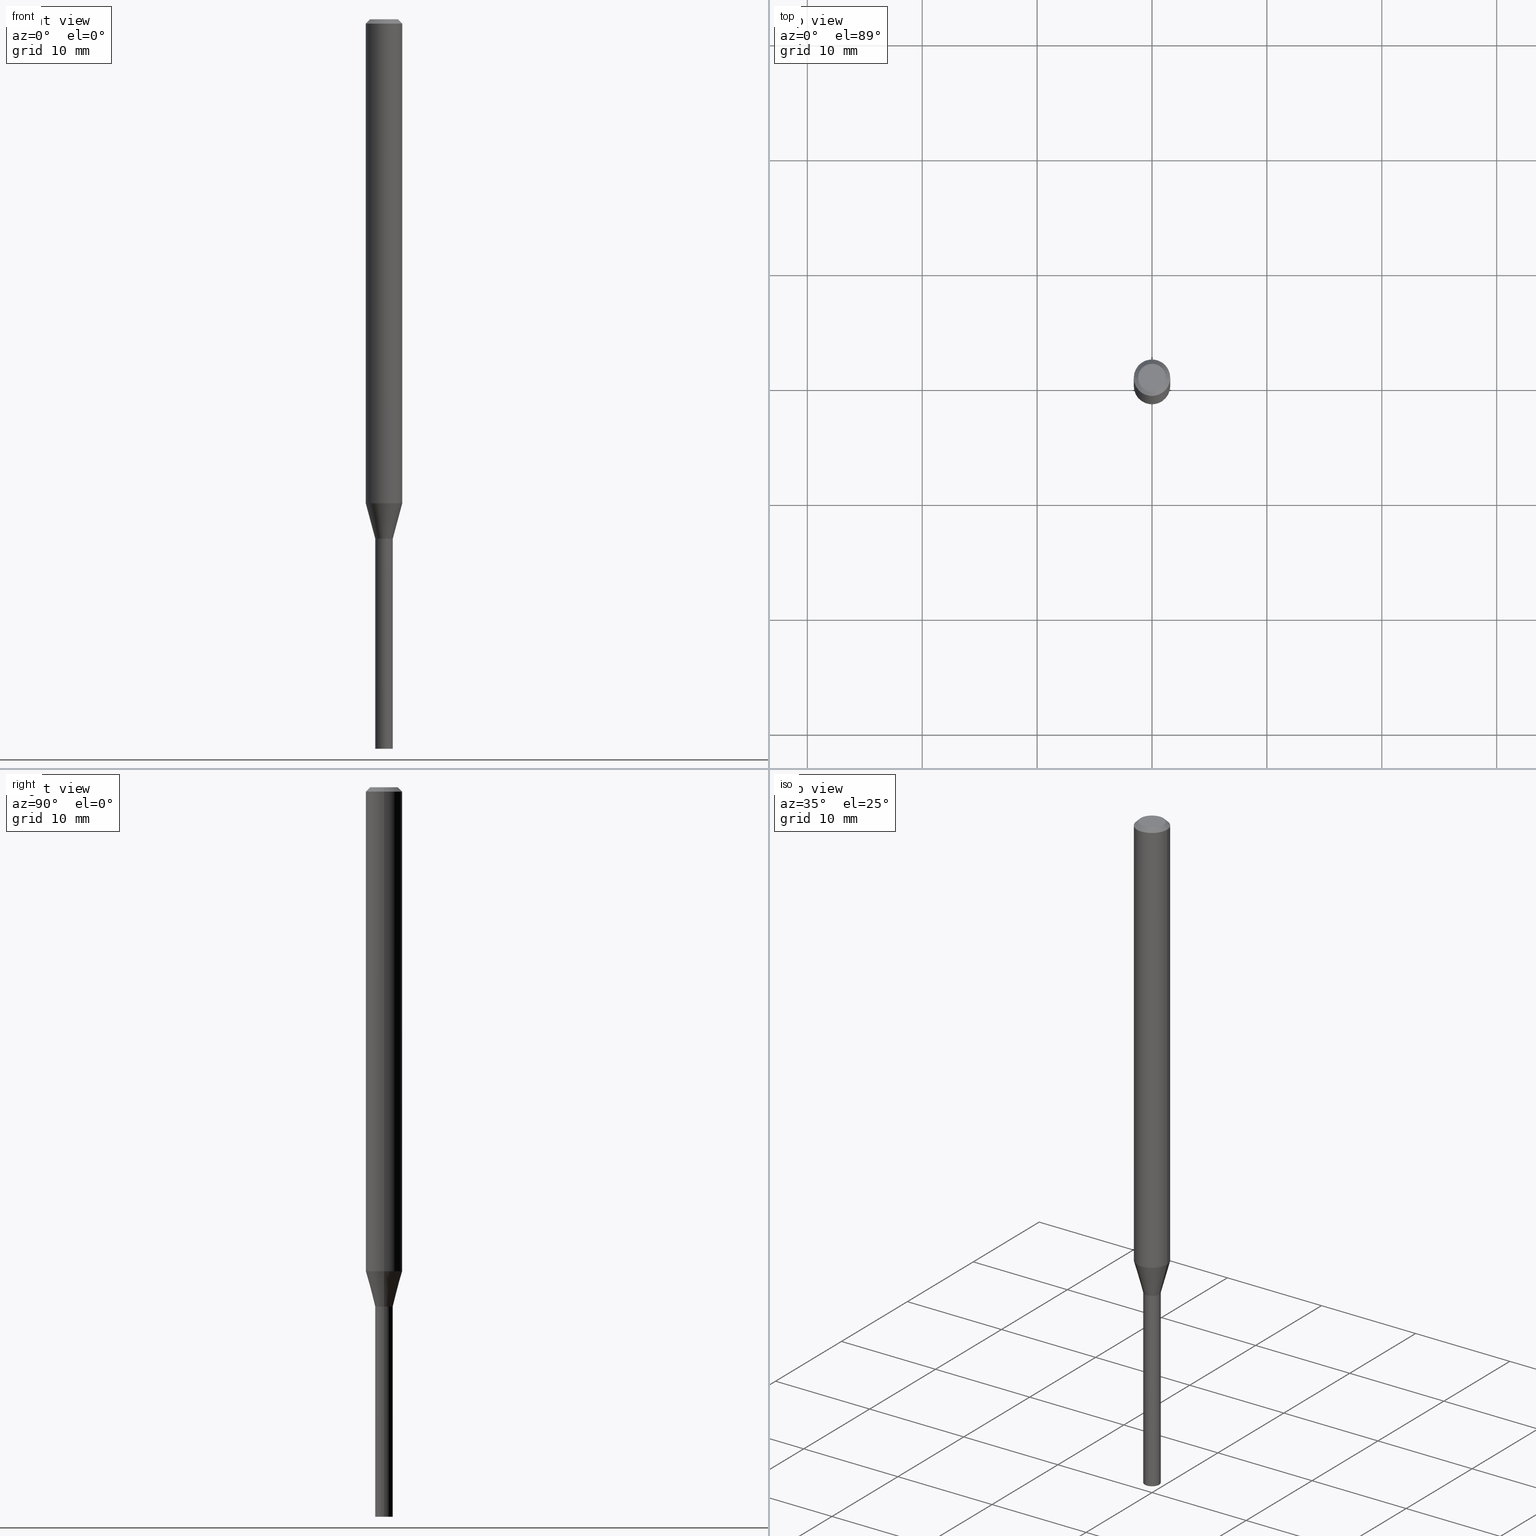
[diagram: canonical four-view strip — front | top / right | iso, engineering-drawing reading convention]
A machine part, canonical four-view strip (front | top / right | iso — engineering-drawing reading convention). The complete STEP part file that produces these views, byte-faithful:
ISO-10303-21;
HEADER;
FILE_DESCRIPTION (( 'STEP AP203' ),
    '1' );
FILE_NAME ('01295.STEP',
    '2024-03-20T01:09:22',
    ( '' ),
    ( '' ),
    'SwSTEP 2.0',
    'SolidWorks 2023',
    '' );
FILE_SCHEMA (( 'CONFIG_CONTROL_DESIGN' ));
ENDSEC;

DATA;
#1 = PLANE ( 'NONE',  #259 ) ;
#2 = EDGE_CURVE ( 'NONE', #214, #28, #339, .T. ) ;
#3 = DIRECTION ( 'NONE',  ( 1.000000000000000000, -6.982962677686236734E-15, 0.000000000000000000 ) ) ;
#4 = COORDINATED_UNIVERSAL_TIME_OFFSET ( 5, 0, .BEHIND. ) ;
#5 = CIRCLE ( 'NONE', #56, 0.02999999999999999889 ) ;
#6 = DIRECTION ( 'NONE',  ( -2.445468806185136597E-29, 3.491481338843145583E-15, 1.000000000000000000 ) ) ;
#7 = COORDINATED_UNIVERSAL_TIME_OFFSET ( 5, 0, .BEHIND. ) ;
#8 = CYLINDRICAL_SURFACE ( 'NONE', #297, 0.02999999999999999889 ) ;
#9 = PERSON_AND_ORGANIZATION_ROLE ( 'classification_officer' ) ;
#10 = ADVANCED_FACE ( 'NONE', ( #121 ), #438, .F. ) ;
#11 = CARTESIAN_POINT ( 'NONE',  ( 2.094888803306315070E-16, 0.02999999999999378511, -1.780000000000000027 ) ) ;
#12 = ORIENTED_EDGE ( 'NONE', *, *, #340, .F. ) ;
#13 = LINE ( 'NONE', #372, #447 ) ;
#14 = VECTOR ( 'NONE', #125, 39.37007874015748143 ) ;
#15 = AXIS2_PLACEMENT_3D ( 'NONE', #385, #72, #213 ) ;
#16 = PRODUCT ( '01295', '01295', '', ( #148 ) ) ;
#17 = FACE_OUTER_BOUND ( 'NONE', #422, .T. ) ;
#18 = EDGE_CURVE ( 'NONE', #71, #222, #104, .T. ) ;
#19 = FACE_OUTER_BOUND ( 'NONE', #417, .T. ) ;
#20 = DATE_AND_TIME ( #337, #406 ) ;
#21 = CARTESIAN_POINT ( 'NONE',  ( -0.02999999999999999889, -7.258607244396301641E-15, -2.500000000000000000 ) ) ;
#22 = LOCAL_TIME ( 21, 9, 22.00000000000000000, #7 ) ;
#23 = CARTESIAN_POINT ( 'NONE',  ( 0.02949999999999999845, -6.420834182132543350E-15, -1.780000000000000027 ) ) ;
#24 = CARTESIAN_POINT ( 'NONE',  ( 4.056319525436792894E-29, -5.791349246257960062E-15, -1.658708348754011741 ) ) ;
#25 = ADVANCED_FACE ( 'NONE', ( #296 ), #1, .F. ) ;
#26 = EDGE_LOOP ( 'NONE', ( #207, #464 ) ) ;
#27 = DIRECTION ( 'NONE',  ( 0.7071067811865511255, -7.319954787623268667E-15, -0.7071067811865439090 ) ) ;
#28 = VERTEX_POINT ( 'NONE', #257 ) ;
#29 = ADVANCED_FACE ( 'NONE', ( #328 ), #333, .T. ) ;
#30 = LOCAL_TIME ( 21, 9, 22.00000000000000000, #4 ) ;
#31 = FACE_OUTER_BOUND ( 'NONE', #419, .T. ) ;
#32 = VERTEX_POINT ( 'NONE', #286 ) ;
#33 = EDGE_CURVE ( 'NONE', #73, #288, #293, .T. ) ;
#34 = DIRECTION ( 'NONE',  ( 1.000000000000000000, -6.982962677686250933E-15, 0.000000000000000000 ) ) ;
#35 = ORIENTED_EDGE ( 'NONE', *, *, #212, .F. ) ;
#36 = DIRECTION ( 'NONE',  ( 1.000000000000000000, -6.982962677686265922E-15, 4.876176775795935793E-29 ) ) ;
#37 = ORIENTED_EDGE ( 'NONE', *, *, #322, .F. ) ;
#38 = DATE_TIME_ROLE ( 'classification_date' ) ;
#39 = AXIS2_PLACEMENT_3D ( 'NONE', #235, #344, #170 ) ;
#40 = EDGE_CURVE ( 'NONE', #222, #71, #365, .T. ) ;
#41 = DIRECTION ( 'NONE',  ( 1.000000000000000000, -6.982962677686253300E-15, 0.000000000000000000 ) ) ;
#42 = CARTESIAN_POINT ( 'NONE',  ( 4.352934475009543120E-29, -6.214836783140799618E-15, -1.780000000000000027 ) ) ;
#43 =( NAMED_UNIT ( * ) SI_UNIT ( $, .STERADIAN. ) SOLID_ANGLE_UNIT ( ) );
#44 = ORIENTED_EDGE ( 'NONE', *, *, #411, .F. ) ;
#45 = APPROVAL_ROLE ( '' ) ;
#46 = VECTOR ( 'NONE', #91, 39.37007874015748143 ) ;
#47 = DIRECTION ( 'NONE',  ( -2.445468806185136597E-29, 3.491481338843145583E-15, 1.000000000000000000 ) ) ;
#48 = ADVANCED_FACE ( 'NONE', ( #253 ), #431, .T. ) ;
#49 = APPROVAL_DATE_TIME ( #188, #356 ) ;
#50 = ORIENTED_EDGE ( 'NONE', *, *, #196, .F. ) ;
#51 = DIRECTION ( 'NONE',  ( -2.438088387897960049E-29, 3.491481338843145188E-15, 1.000000000000000000 ) ) ;
#52 = ADVANCED_FACE ( 'NONE', ( #117 ), #8, .T. ) ;
#53 = EDGE_CURVE ( 'NONE', #189, #424, #308, .T. ) ;
#54 = ORIENTED_EDGE ( 'NONE', *, *, #411, .T. ) ;
#55 = CARTESIAN_POINT ( 'NONE',  ( 4.351711740606451439E-29, -6.213091042471378115E-15, -1.779500000000000304 ) ) ;
#56 = AXIS2_PLACEMENT_3D ( 'NONE', #312, #172, #240 ) ;
#57 = ORGANIZATION ( 'UNSPECIFIED', 'UNSPECIFIED', '' ) ;
#58 = FACE_OUTER_BOUND ( 'NONE', #26, .T. ) ;
#59 = APPROVAL_DATE_TIME ( #20, #175 ) ;
#60 = DIRECTION ( 'NONE',  ( 2.445468806185136597E-29, -3.491481338843145583E-15, -1.000000000000000000 ) ) ;
#61 = DIRECTION ( 'NONE',  ( -2.445468806185136877E-29, 3.491481338843145188E-15, 1.000000000000000000 ) ) ;
#62 = VECTOR ( 'NONE', #440, 39.37007874015748143 ) ;
#63 = DIRECTION ( 'NONE',  ( 0.2588190451025215721, 1.565188264969619995E-15, 0.9659258262890679791 ) ) ;
#64 = DIRECTION ( 'NONE',  ( 0.7071067811865656694, -2.468850131082446387E-15, 0.7071067811865294761 ) ) ;
#65 = ORIENTED_EDGE ( 'NONE', *, *, #262, .F. ) ;
#66 = CARTESIAN_POINT ( 'NONE',  ( 4.352934475009543120E-29, -6.214836783140799618E-15, -1.780000000000000027 ) ) ;
#67 = ORIENTED_EDGE ( 'NONE', *, *, #401, .F. ) ;
#68 = CC_DESIGN_PERSON_AND_ORGANIZATION_ASSIGNMENT ( #85, #74, ( #186 ) ) ;
#69 = AXIS2_PLACEMENT_3D ( 'NONE', #359, #6, #180 ) ;
#70 = DIRECTION ( 'NONE',  ( -0.2588190451025215721, 5.211531920934551831E-15, 0.9659258262890679791 ) ) ;
#71 = VERTEX_POINT ( 'NONE', #260 ) ;
#72 = DIRECTION ( 'NONE',  ( -2.445468806185136597E-29, 3.491481338843145583E-15, 1.000000000000000000 ) ) ;
#73 = VERTEX_POINT ( 'NONE', #402 ) ;
#74 = PERSON_AND_ORGANIZATION_ROLE ( 'creator' ) ;
#75 = ORIENTED_EDGE ( 'NONE', *, *, #401, .T. ) ;
#76 = CLOSED_SHELL ( 'NONE', ( #10, #377, #84, #408, #29, #247, #48, #332, #311, #299, #387, #181 ) ) ;
#77 = AXIS2_PLACEMENT_3D ( 'NONE', #455, #320, #146 ) ;
#78 = CARTESIAN_POINT ( 'NONE',  ( 6.113672015462842613E-29, -8.728703347107864943E-15, -2.500000000000000000 ) ) ;
#79 = ADVANCED_BREP_SHAPE_REPRESENTATION ( '01295', ( #433, #427, #319 ), #349 ) ;
#80 = PERSON_AND_ORGANIZATION ( #346, #57 ) ;
#81 = CARTESIAN_POINT ( 'NONE',  ( 0.000000000000000000, 0.000000000000000000, 0.000000000000000000 ) ) ;
#82 = PERSON_AND_ORGANIZATION ( #346, #57 ) ;
#83 = DIRECTION ( 'NONE',  ( -2.445468806185136597E-29, 3.491481338843145583E-15, 1.000000000000000000 ) ) ;
#84 = ADVANCED_FACE ( 'NONE', ( #357 ), #289, .T. ) ;
#85 = PERSON_AND_ORGANIZATION ( #346, #57 ) ;
#86 = AXIS2_PLACEMENT_3D ( 'NONE', #298, #51, #195 ) ;
#87 = DIRECTION ( 'NONE',  ( 2.438088387897960049E-29, -3.491481338843145188E-15, -1.000000000000000000 ) ) ;
#88 = DIRECTION ( 'NONE',  ( 1.000000000000000000, -6.982962677686253300E-15, 0.000000000000000000 ) ) ;
#89 = EDGE_CURVE ( 'NONE', #310, #386, #156, .T. ) ;
#90 = LINE ( 'NONE', #301, #14 ) ;
#91 = DIRECTION ( 'NONE',  ( -2.445468806185136877E-29, 3.491481338843145188E-15, 1.000000000000000000 ) ) ;
#92 = VECTOR ( 'NONE', #160, 39.37007874015748143 ) ;
#93 = CARTESIAN_POINT ( 'NONE',  ( -0.06250000000000000000, 4.440892098500626162E-16, -3.074334431409316114E-30 ) ) ;
#94 = LINE ( 'NONE', #93, #92 ) ;
#95 = DIRECTION ( 'NONE',  ( 2.445468806185136597E-29, -3.491481338843145583E-15, -1.000000000000000000 ) ) ;
#96 = AXIS2_PLACEMENT_3D ( 'NONE', #42, #323, #41 ) ;
#97 = FACE_OUTER_BOUND ( 'NONE', #244, .T. ) ;
#98 = ORIENTED_EDGE ( 'NONE', *, *, #362, .F. ) ;
#99 = CARTESIAN_POINT ( 'NONE',  ( -0.02999999999999999889, 2.131628207280300479E-16, -1.475680527076471707E-30 ) ) ;
#100 = EDGE_CURVE ( 'NONE', #73, #165, #318, .T. ) ;
#101 = ORIENTED_EDGE ( 'NONE', *, *, #196, .T. ) ;
#102 = LINE ( 'NONE', #99, #127 ) ;
#103 = VERTEX_POINT ( 'NONE', #443 ) ;
#104 = CIRCLE ( 'NONE', #69, 0.06250000000000000000 ) ;
#105 = DIRECTION ( 'NONE',  ( -2.445468806185136877E-29, 3.491481338843145188E-15, 1.000000000000000000 ) ) ;
#106 = ORIENTED_EDGE ( 'NONE', *, *, #116, .F. ) ;
#107 = CALENDAR_DATE ( 2024, 19, 3 ) ;
#108 = EDGE_LOOP ( 'NONE', ( #37, #173, #364, #456 ) ) ;
#109 = CC_DESIGN_PERSON_AND_ORGANIZATION_ASSIGNMENT ( #82, #223, ( #186 ) ) ;
#110 = DIRECTION ( 'NONE',  ( 0.000000000000000000, 0.000000000000000000, 1.000000000000000000 ) ) ;
#111 = CARTESIAN_POINT ( 'NONE',  ( -0.02949999999999999845, -6.005226676091569483E-15, -1.780000000000000027 ) ) ;
#112 = CONICAL_SURFACE ( 'NONE', #453, 0.02999999999999992603, 0.2617993877991502960 ) ;
#113 = AXIS2_PLACEMENT_3D ( 'NONE', #459, #414, #420 ) ;
#114 = EDGE_LOOP ( 'NONE', ( #354, #239, #203, #384 ) ) ;
#115 = DATE_AND_TIME ( #291, #30 ) ;
#116 = EDGE_CURVE ( 'NONE', #32, #288, #412, .T. ) ;
#117 = FACE_OUTER_BOUND ( 'NONE', #226, .T. ) ;
#118 = ORIENTED_EDGE ( 'NONE', *, *, #249, .T. ) ;
#119 = DESIGN_CONTEXT ( 'detailed design', #393, 'design' ) ;
#120 = CIRCLE ( 'NONE', #208, 0.02999999999999992256 ) ;
#121 = FACE_OUTER_BOUND ( 'NONE', #224, .T. ) ;
#122 = DIRECTION ( 'NONE',  ( 1.000000000000000000, -6.982962677686253300E-15, 0.000000000000000000 ) ) ;
#123 = DIRECTION ( 'NONE',  ( -2.445468806185136597E-29, 3.491481338843145583E-15, 1.000000000000000000 ) ) ;
#124 = EDGE_LOOP ( 'NONE', ( #44, #390, #306, #176 ) ) ;
#125 = DIRECTION ( 'NONE',  ( -2.445468806185136877E-29, 3.491481338843145188E-15, 1.000000000000000000 ) ) ;
#126 = CLOSED_SHELL ( 'NONE', ( #52, #258, #202, #25 ) ) ;
#127 = VECTOR ( 'NONE', #105, 39.37007874015748143 ) ;
#128 = APPROVAL_PERSON_ORGANIZATION ( #329, #151, #324 ) ;
#129 = PLANE ( 'NONE',  #86 ) ;
#130 = CARTESIAN_POINT ( 'NONE',  ( 4.351711740606451439E-29, -6.213091042471378115E-15, -1.779500000000000304 ) ) ;
#131 = DIRECTION ( 'NONE',  ( -2.445468806185136597E-29, 3.491481338843145583E-15, 1.000000000000000000 ) ) ;
#132 = ORIENTED_EDGE ( 'NONE', *, *, #227, .F. ) ;
#133 = AXIS2_PLACEMENT_3D ( 'NONE', #330, #147, #220 ) ;
#134 = CC_DESIGN_APPROVAL ( #356, ( #460 ) ) ;
#135 = CARTESIAN_POINT ( 'NONE',  ( 0.02999999999999999889, -6.424325663471387146E-15, -1.780000000000000027 ) ) ;
#136 = ORIENTED_EDGE ( 'NONE', *, *, #340, .T. ) ;
#137 = PLANE ( 'NONE',  #141 ) ;
#138 = ORIENTED_EDGE ( 'NONE', *, *, #441, .F. ) ;
#139 = CARTESIAN_POINT ( 'NONE',  ( 0.02949999999999999845, -6.420834182132543350E-15, -1.780000000000000027 ) ) ;
#140 = ORIENTED_EDGE ( 'NONE', *, *, #465, .F. ) ;
#141 = AXIS2_PLACEMENT_3D ( 'NONE', #167, #164, #36 ) ;
#142 = CIRCLE ( 'NONE', #15, 0.04749999999999999362 ) ;
#143 = DIRECTION ( 'NONE',  ( -1.000000000000000000, 6.982962677686265922E-15, -4.876176775795935793E-29 ) ) ;
#144 = ORIENTED_EDGE ( 'NONE', *, *, #53, .F. ) ;
#145 = CC_DESIGN_PERSON_AND_ORGANIZATION_ASSIGNMENT ( #256, #426, ( #16 ) ) ;
#146 = DIRECTION ( 'NONE',  ( 1.000000000000000000, -6.982962677686253300E-15, 0.000000000000000000 ) ) ;
#147 = DIRECTION ( 'NONE',  ( -2.445468806185136597E-29, 3.491481338843145583E-15, 1.000000000000000000 ) ) ;
#148 = MECHANICAL_CONTEXT ( 'NONE', #190, 'mechanical' ) ;
#149 = ORIENTED_EDGE ( 'NONE', *, *, #266, .T. ) ;
#150 = CIRCLE ( 'NONE', #199, 0.02999999999999999889 ) ;
#151 = APPROVAL ( #360, 'UNSPECIFIED' ) ;
#152 = CONICAL_SURFACE ( 'NONE', #358, 0.02949999999999999845, 0.7853981633974739252 ) ;
#153 = DIRECTION ( 'NONE',  ( -1.000000000000000000, 6.982962677686265922E-15, -4.876176775795935793E-29 ) ) ;
#154 = ORIENTED_EDGE ( 'NONE', *, *, #262, .T. ) ;
#155 = DIRECTION ( 'NONE',  ( 1.000000000000000000, -6.982962677686266711E-15, 4.876176775795935793E-29 ) ) ;
#156 = CIRCLE ( 'NONE', #399, 0.02999999999999999889 ) ;
#157 = DIRECTION ( 'NONE',  ( -0.7071067811865511255, 2.468850131082294531E-15, -0.7071067811865439090 ) ) ;
#158 = CIRCLE ( 'NONE', #413, 0.06250000000000000000 ) ;
#159 = CARTESIAN_POINT ( 'NONE',  ( 4.352934475009543120E-29, -6.214836783140799618E-15, -1.780000000000000027 ) ) ;
#160 = DIRECTION ( 'NONE',  ( -2.445468806185136877E-29, 3.491481338843145188E-15, 1.000000000000000000 ) ) ;
#161 = CARTESIAN_POINT ( 'NONE',  ( -0.06250000000000000000, 3.840629472727444916E-16, -0.01499999999999999944 ) ) ;
#162 = AXIS2_PLACEMENT_3D ( 'NONE', #251, #435, #394 ) ;
#163 = DIRECTION ( 'NONE',  ( 1.000000000000000000, -6.982962677686250933E-15, 0.000000000000000000 ) ) ;
#164 = DIRECTION ( 'NONE',  ( -2.438088387897960049E-29, 3.491481338843145188E-15, 1.000000000000000000 ) ) ;
#165 = VERTEX_POINT ( 'NONE', #23 ) ;
#166 = EDGE_CURVE ( 'NONE', #189, #71, #94, .T. ) ;
#167 = CARTESIAN_POINT ( 'NONE',  ( 4.352934475009543120E-29, -6.214836783140799618E-15, -1.780000000000000027 ) ) ;
#168 = ORIENTED_EDGE ( 'NONE', *, *, #209, .F. ) ;
#169 = AXIS2_PLACEMENT_3D ( 'NONE', #206, #379, #143 ) ;
#170 = DIRECTION ( 'NONE',  ( 1.000000000000000000, -6.982962677686250933E-15, 0.000000000000000000 ) ) ;
#171 = ORIENTED_EDGE ( 'NONE', *, *, #425, .T. ) ;
#172 = DIRECTION ( 'NONE',  ( -2.445468806185136597E-29, 3.491481338843145583E-15, 1.000000000000000000 ) ) ;
#173 = ORIENTED_EDGE ( 'NONE', *, *, #2, .T. ) ;
#174 = CARTESIAN_POINT ( 'NONE',  ( -0.02999999999999999889, -7.258607244396301641E-15, -1.780000000000000027 ) ) ;
#175 = APPROVAL ( #439, 'UNSPECIFIED' ) ;
#176 = ORIENTED_EDGE ( 'NONE', *, *, #242, .F. ) ;
#177 = VECTOR ( 'NONE', #64, 39.37007874015748143 ) ;
#178 = PERSON_AND_ORGANIZATION ( #346, #57 ) ;
#179 = ORIENTED_EDGE ( 'NONE', *, *, #40, .F. ) ;
#180 = DIRECTION ( 'NONE',  ( 1.000000000000000000, -6.982962677686266711E-15, 0.000000000000000000 ) ) ;
#181 = ADVANCED_FACE ( 'NONE', ( #19 ), #446, .F. ) ;
#182 = APPROVAL_STATUS ( 'not_yet_approved' ) ;
#183 = ORIENTED_EDGE ( 'NONE', *, *, #33, .T. ) ;
#184 = AXIS2_PLACEMENT_3D ( 'NONE', #450, #123, #163 ) ;
#185 = COORDINATED_UNIVERSAL_TIME_OFFSET ( 5, 0, .BEHIND. ) ;
#186 = PRODUCT_DEFINITION_FORMATION_WITH_SPECIFIED_SOURCE ( 'ANY', '', #16, .NOT_KNOWN. ) ;
#187 = ORIENTED_EDGE ( 'NONE', *, *, #100, .T. ) ;
#188 = DATE_AND_TIME ( #294, #432 ) ;
#189 = VERTEX_POINT ( 'NONE', #231 ) ;
#190 = APPLICATION_CONTEXT ( 'configuration controlled 3d designs of mechanical parts and assemblies' ) ;
#191 = DIRECTION ( 'NONE',  ( -2.445468806185136597E-29, 3.491481338843145583E-15, 1.000000000000000000 ) ) ;
#192 = AXIS2_PLACEMENT_3D ( 'NONE', #261, #373, #338 ) ;
#193 = CARTESIAN_POINT ( 'NONE',  ( 4.352934475009543120E-29, -6.214836783140799618E-15, -1.780000000000000027 ) ) ;
#194 = CC_DESIGN_APPROVAL ( #151, ( #186 ) ) ;
#195 = DIRECTION ( 'NONE',  ( 1.000000000000000000, -6.982962677686265922E-15, 4.876176775795935793E-29 ) ) ;
#196 = EDGE_CURVE ( 'NONE', #317, #288, #90, .T. ) ;
#197 = CYLINDRICAL_SURFACE ( 'NONE', #192, 0.02999999999999999889 ) ;
#198 = DIRECTION ( 'NONE',  ( 1.000000000000000000, -6.982962677686267499E-15, 4.852736867747366768E-29 ) ) ;
#199 = AXIS2_PLACEMENT_3D ( 'NONE', #331, #334, #265 ) ;
#200 = APPROVAL_PERSON_ORGANIZATION ( #178, #175, #448 ) ;
#201 = DIRECTION ( 'NONE',  ( -2.445468806185136597E-29, 3.491481338843145583E-15, 1.000000000000000000 ) ) ;
#202 = ADVANCED_FACE ( 'NONE', ( #269 ), #197, .T. ) ;
#203 = ORIENTED_EDGE ( 'NONE', *, *, #425, .F. ) ;
#204 = LINE ( 'NONE', #243, #236 ) ;
#205 = ORIENTED_EDGE ( 'NONE', *, *, #89, .T. ) ;
#206 = CARTESIAN_POINT ( 'NONE',  ( 3.316907271900976096E-16, 0.04749999999999999362, -2.430275478499333970E-16 ) ) ;
#207 = ORIENTED_EDGE ( 'NONE', *, *, #283, .F. ) ;
#208 = AXIS2_PLACEMENT_3D ( 'NONE', #55, #353, #238 ) ;
#209 = EDGE_CURVE ( 'NONE', #424, #222, #374, .T. ) ;
#210 = FACE_OUTER_BOUND ( 'NONE', #343, .T. ) ;
#211 = ORIENTED_EDGE ( 'NONE', *, *, #212, .T. ) ;
#212 = EDGE_CURVE ( 'NONE', #386, #310, #150, .T. ) ;
#213 = DIRECTION ( 'NONE',  ( 1.000000000000000000, -6.982962677686267499E-15, 4.852736867747366768E-29 ) ) ;
#214 = VERTEX_POINT ( 'NONE', #21 ) ;
#215 = CARTESIAN_POINT ( 'NONE',  ( 0.000000000000000000, 0.000000000000000000, 0.000000000000000000 ) ) ;
#216 = AXIS2_PLACEMENT_3D ( 'NONE', #302, #449, #234 ) ;
#217 = VECTOR ( 'NONE', #27, 39.37007874015748143 ) ;
#218 = DIMENSIONAL_EXPONENTS ( 1.000000000000000000, 0.000000000000000000, 0.000000000000000000, 0.000000000000000000, 0.000000000000000000, 0.000000000000000000, 0.000000000000000000 ) ;
#219 = EDGE_CURVE ( 'NONE', #28, #386, #13, .T. ) ;
#220 = DIRECTION ( 'NONE',  ( 1.000000000000000000, -6.982962677686267499E-15, 4.876176775795935793E-29 ) ) ;
#221 = CALENDAR_DATE ( 2024, 19, 3 ) ;
#222 = VERTEX_POINT ( 'NONE', #444 ) ;
#223 = PERSON_AND_ORGANIZATION_ROLE ( 'design_supplier' ) ;
#224 = EDGE_LOOP ( 'NONE', ( #140, #101, #149, #381 ) ) ;
#225 = PERSON_AND_ORGANIZATION ( #346, #57 ) ;
#226 = EDGE_LOOP ( 'NONE', ( #367, #313, #35, #452 ) ) ;
#227 = EDGE_CURVE ( 'NONE', #415, #317, #282, .T. ) ;
#228 = LINE ( 'NONE', #161, #454 ) ;
#229 = DIRECTION ( 'NONE',  ( -2.445468806185136597E-29, 3.491481338843145583E-15, 1.000000000000000000 ) ) ;
#230 = CC_DESIGN_APPROVAL ( #175, ( #237 ) ) ;
#231 = CARTESIAN_POINT ( 'NONE',  ( -0.06250000000000000000, -5.347260036407896657E-15, -1.658708348754011741 ) ) ;
#232 = CC_DESIGN_PERSON_AND_ORGANIZATION_ASSIGNMENT ( #284, #395, ( #460 ) ) ;
#233 = DIRECTION ( 'NONE',  ( -2.445468806185136877E-29, 3.491481338843145188E-15, 1.000000000000000000 ) ) ;
#234 = DIRECTION ( 'NONE',  ( 1.000000000000000000, -6.982962677686267499E-15, 4.876176775795935793E-29 ) ) ;
#235 = CARTESIAN_POINT ( 'NONE',  ( 4.352934475009543120E-29, -6.214836783140799618E-15, -1.780000000000000027 ) ) ;
#236 = VECTOR ( 'NONE', #70, 39.37007874015748143 ) ;
#237 = SECURITY_CLASSIFICATION ( '', '', #327 ) ;
#238 = DIRECTION ( 'NONE',  ( 1.000000000000000000, -6.982962677686254089E-15, 0.000000000000000000 ) ) ;
#239 = ORIENTED_EDGE ( 'NONE', *, *, #362, .T. ) ;
#240 = DIRECTION ( 'NONE',  ( 1.000000000000000000, -6.982962677686236734E-15, 0.000000000000000000 ) ) ;
#241 = ORIENTED_EDGE ( 'NONE', *, *, #166, .F. ) ;
#242 = EDGE_CURVE ( 'NONE', #388, #71, #228, .T. ) ;
#243 = CARTESIAN_POINT ( 'NONE',  ( -0.02999999999999992603, -6.001673962412769373E-15, -1.780000000000000027 ) ) ;
#244 = EDGE_LOOP ( 'NONE', ( #154, #54 ) ) ;
#245 = CARTESIAN_POINT ( 'NONE',  ( 3.668203209277705088E-31, -5.237222008264718399E-17, -0.01499999999999999944 ) ) ;
#246 = EDGE_LOOP ( 'NONE', ( #325, #187, #136, #378 ) ) ;
#247 = ADVANCED_FACE ( 'NONE', ( #17 ), #112, .T. ) ;
#248 = ORIENTED_EDGE ( 'NONE', *, *, #209, .T. ) ;
#249 = EDGE_CURVE ( 'NONE', #415, #32, #404, .T. ) ;
#250 = DATE_AND_TIME ( #221, #22 ) ;
#251 = CARTESIAN_POINT ( 'NONE',  ( 3.668203209277705088E-31, -5.237222008264718399E-17, -0.01499999999999999944 ) ) ;
#252 = AXIS2_PLACEMENT_3D ( 'NONE', #268, #369, #198 ) ;
#253 = FACE_OUTER_BOUND ( 'NONE', #350, .T. ) ;
#254 = LENGTH_MEASURE_WITH_UNIT ( LENGTH_MEASURE( 0.02539999999999999897 ), #389 );
#255 = DIRECTION ( 'NONE',  ( 1.000000000000000000, -6.982962677686267499E-15, 4.876176775795936353E-29 ) ) ;
#256 = PERSON_AND_ORGANIZATION ( #346, #57 ) ;
#257 = CARTESIAN_POINT ( 'NONE',  ( 0.02999999999999999889, -8.938192227438451682E-15, -2.500000000000000000 ) ) ;
#258 = ADVANCED_FACE ( 'NONE', ( #58 ), #129, .F. ) ;
#259 = AXIS2_PLACEMENT_3D ( 'NONE', #11, #87, #153 ) ;
#260 = CARTESIAN_POINT ( 'NONE',  ( -0.06250000000000000000, -2.477771523320241152E-15, -0.01499999999999999944 ) ) ;
#261 = CARTESIAN_POINT ( 'NONE',  ( 0.000000000000000000, 0.000000000000000000, 0.000000000000000000 ) ) ;
#262 = EDGE_CURVE ( 'NONE', #388, #103, #405, .T. ) ;
#263 = DIRECTION ( 'NONE',  ( -2.445468806185136597E-29, 3.491481338843145583E-15, 1.000000000000000000 ) ) ;
#264 = AXIS2_PLACEMENT_3D ( 'NONE', #409, #229, #88 ) ;
#265 = DIRECTION ( 'NONE',  ( 1.000000000000000000, -6.982962677686268288E-15, 0.000000000000000000 ) ) ;
#266 = EDGE_CURVE ( 'NONE', #288, #32, #120, .T. ) ;
#267 = COORDINATED_UNIVERSAL_TIME_OFFSET ( 5, 0, .BEHIND. ) ;
#268 = CARTESIAN_POINT ( 'NONE',  ( 3.774932479771048470E-45, -5.389603120341614588E-31, -1.543643685097680012E-16 ) ) ;
#269 = FACE_OUTER_BOUND ( 'NONE', #108, .T. ) ;
#270 = CC_DESIGN_DATE_AND_TIME_ASSIGNMENT ( #250, #437, ( #460 ) ) ;
#271 = DIRECTION ( 'NONE',  ( 1.000000000000000000, -6.982962677686262766E-15, 0.000000000000000000 ) ) ;
#272 = VECTOR ( 'NONE', #233, 39.37007874015748143 ) ;
#273 = ORIENTED_EDGE ( 'NONE', *, *, #18, .T. ) ;
#274 = CIRCLE ( 'NONE', #77, 0.02999999999999992603 ) ;
#275 = FACE_OUTER_BOUND ( 'NONE', #458, .T. ) ;
#276 = EDGE_LOOP ( 'NONE', ( #211, #205 ) ) ;
#277 = LINE ( 'NONE', #139, #177 ) ;
#278 = CC_DESIGN_DATE_AND_TIME_ASSIGNMENT ( #355, #38, ( #237 ) ) ;
#279 = ORIENTED_EDGE ( 'NONE', *, *, #100, .F. ) ;
#280 = CARTESIAN_POINT ( 'NONE',  ( 4.352934475009543120E-29, -6.214836783140799618E-15, -1.780000000000000027 ) ) ;
#281 = ORIENTED_EDGE ( 'NONE', *, *, #116, .T. ) ;
#282 = CIRCLE ( 'NONE', #264, 0.02999999999999992603 ) ;
#283 = EDGE_CURVE ( 'NONE', #28, #214, #5, .T. ) ;
#284 = PERSON_AND_ORGANIZATION ( #346, #57 ) ;
#285 = ORIENTED_EDGE ( 'NONE', *, *, #304, .T. ) ;
#286 = CARTESIAN_POINT ( 'NONE',  ( 0.02999999999999992256, -6.422579922801964854E-15, -1.779500000000000304 ) ) ;
#287 = APPLICATION_PROTOCOL_DEFINITION ( 'international standard', 'config_control_design', 1994, #393 ) ;
#288 = VERTEX_POINT ( 'NONE', #462 ) ;
#289 = CONICAL_SURFACE ( 'NONE', #463, 0.06250000000000000000, 0.7853981633974533860 ) ;
#290 = APPROVAL_PERSON_ORGANIZATION ( #80, #356, #45 ) ;
#291 = CALENDAR_DATE ( 2024, 19, 3 ) ;
#292 = PRODUCT_DEFINITION_SHAPE ( 'NONE', 'NONE',  #460 ) ;
#293 = LINE ( 'NONE', #111, #62 ) ;
#294 = CALENDAR_DATE ( 2024, 19, 3 ) ;
#295 = ORIENTED_EDGE ( 'NONE', *, *, #242, .T. ) ;
#296 = FACE_OUTER_BOUND ( 'NONE', #276, .T. ) ;
#297 = AXIS2_PLACEMENT_3D ( 'NONE', #215, #47, #255 ) ;
#298 = CARTESIAN_POINT ( 'NONE',  ( 6.194428952736783458E-29, -8.613054816532157721E-15, -2.500000000000000000 ) ) ;
#299 = ADVANCED_FACE ( 'NONE', ( #275 ), #137, .F. ) ;
#300 = DIRECTION ( 'NONE',  ( 1.000000000000000000, -6.982962677686268288E-15, 0.000000000000000000 ) ) ;
#301 = CARTESIAN_POINT ( 'NONE',  ( -0.02999999999999992603, 2.131628207280295302E-16, -1.475680527076468203E-30 ) ) ;
#302 = CARTESIAN_POINT ( 'NONE',  ( 0.000000000000000000, 0.000000000000000000, 0.000000000000000000 ) ) ;
#303 = CARTESIAN_POINT ( 'NONE',  ( 3.668203209277705088E-31, -5.237222008264718399E-17, -0.01499999999999999944 ) ) ;
#304 = EDGE_CURVE ( 'NONE', #415, #424, #316, .T. ) ;
#305 = CARTESIAN_POINT ( 'NONE',  ( 0.06250000000000000000, -4.811533449433679005E-16, -0.01499999999999999944 ) ) ;
#306 = ORIENTED_EDGE ( 'NONE', *, *, #40, .T. ) ;
#307 = LINE ( 'NONE', #305, #217 ) ;
#308 = CIRCLE ( 'NONE', #391, 0.06250000000000000000 ) ;
#309 = CC_DESIGN_SECURITY_CLASSIFICATION ( #237, ( #186 ) ) ;
#310 = VERTEX_POINT ( 'NONE', #174 ) ;
#311 = ADVANCED_FACE ( 'NONE', ( #97 ), #382, .F. ) ;
#312 = CARTESIAN_POINT ( 'NONE',  ( 6.113672015462842613E-29, -8.728703347107864943E-15, -2.500000000000000000 ) ) ;
#313 = ORIENTED_EDGE ( 'NONE', *, *, #322, .T. ) ;
#314 = CARTESIAN_POINT ( 'NONE',  ( -0.04749999999999999362, 3.578768372314208041E-16, -1.543643685097703924E-16 ) ) ;
#315 = ORIENTED_EDGE ( 'NONE', *, *, #53, .T. ) ;
#316 = LINE ( 'NONE', #457, #370 ) ;
#317 = VERTEX_POINT ( 'NONE', #376 ) ;
#318 = CIRCLE ( 'NONE', #184, 0.02949999999999999845 ) ;
#319 = AXIS2_PLACEMENT_3D ( 'NONE', #363, #110, #366 ) ;
#320 = DIRECTION ( 'NONE',  ( -2.445468806185136597E-29, 3.491481338843145583E-15, 1.000000000000000000 ) ) ;
#321 = DIRECTION ( 'NONE',  ( -2.445468806185136597E-29, 3.491481338843145583E-15, 1.000000000000000000 ) ) ;
#322 = EDGE_CURVE ( 'NONE', #214, #310, #102, .T. ) ;
#323 = DIRECTION ( 'NONE',  ( -2.445468806185136597E-29, 3.491481338843145583E-15, 1.000000000000000000 ) ) ;
#324 = APPROVAL_ROLE ( '' ) ;
#325 = ORIENTED_EDGE ( 'NONE', *, *, #33, .F. ) ;
#326 = AXIS2_PLACEMENT_3D ( 'NONE', #81, #361, #155 ) ;
#327 = SECURITY_CLASSIFICATION_LEVEL ( 'unclassified' ) ;
#328 = FACE_OUTER_BOUND ( 'NONE', #114, .T. ) ;
#329 = PERSON_AND_ORGANIZATION ( #346, #57 ) ;
#330 = CARTESIAN_POINT ( 'NONE',  ( 0.000000000000000000, 0.000000000000000000, 0.000000000000000000 ) ) ;
#331 = CARTESIAN_POINT ( 'NONE',  ( 4.352934475009543120E-29, -6.214836783140799618E-15, -1.780000000000000027 ) ) ;
#332 = ADVANCED_FACE ( 'NONE', ( #410 ), #383, .T. ) ;
#333 = CONICAL_SURFACE ( 'NONE', #96, 0.02999999999999992603, 0.2617993877991502960 ) ;
#334 = DIRECTION ( 'NONE',  ( -2.445468806185136597E-29, 3.491481338843145583E-15, 1.000000000000000000 ) ) ;
#335 = SHAPE_DEFINITION_REPRESENTATION ( #292, #79 ) ;
#336 = DIRECTION ( 'NONE',  ( -1.000000000000000000, 6.982962677686266711E-15, 0.000000000000000000 ) ) ;
#337 = CALENDAR_DATE ( 2024, 19, 3 ) ;
#338 = DIRECTION ( 'NONE',  ( 1.000000000000000000, -6.982962677686267499E-15, 4.876176775795936353E-29 ) ) ;
#339 = CIRCLE ( 'NONE', #348, 0.02999999999999999889 ) ;
#340 = EDGE_CURVE ( 'NONE', #165, #32, #277, .T. ) ;
#341 = DIRECTION ( 'NONE',  ( -2.445468806185136597E-29, 3.491481338843145583E-15, 1.000000000000000000 ) ) ;
#342 = CARTESIAN_POINT ( 'NONE',  ( 0.02999999999999992603, -6.424325663471386357E-15, -1.780000000000000027 ) ) ;
#343 = EDGE_LOOP ( 'NONE', ( #75, #183, #106, #12 ) ) ;
#344 = DIRECTION ( 'NONE',  ( -2.445468806185136597E-29, 3.491481338843145583E-15, 1.000000000000000000 ) ) ;
#345 = ORIENTED_EDGE ( 'NONE', *, *, #18, .F. ) ;
#346 = PERSON ( 'UNSPECIFIED', 'UNSPECIFIED', 'UNSPECIFIED', ('UNSPECIFIED'), ('UNSPECIFIED'), ('UNSPECIFIED') ) ;
#347 = DIRECTION ( 'NONE',  ( 1.000000000000000000, -6.982962677686250933E-15, 0.000000000000000000 ) ) ;
#348 = AXIS2_PLACEMENT_3D ( 'NONE', #78, #321, #3 ) ;
#349 =( GEOMETRIC_REPRESENTATION_CONTEXT ( 3 ) GLOBAL_UNCERTAINTY_ASSIGNED_CONTEXT ( ( #436 ) ) GLOBAL_UNIT_ASSIGNED_CONTEXT ( ( #429, #434, #43 ) ) REPRESENTATION_CONTEXT ( 'NONE', 'WORKASPACE' ) );
#350 = EDGE_LOOP ( 'NONE', ( #241, #315, #248, #345 ) ) ;
#351 = FACE_OUTER_BOUND ( 'NONE', #246, .T. ) ;
#352 = ORIENTED_EDGE ( 'NONE', *, *, #465, .T. ) ;
#353 = DIRECTION ( 'NONE',  ( -2.445468806185136597E-29, 3.491481338843145583E-15, 1.000000000000000000 ) ) ;
#354 = ORIENTED_EDGE ( 'NONE', *, *, #227, .T. ) ;
#355 = DATE_AND_TIME ( #107, #400 ) ;
#356 = APPROVAL ( #182, 'UNSPECIFIED' ) ;
#357 = FACE_OUTER_BOUND ( 'NONE', #124, .T. ) ;
#358 = AXIS2_PLACEMENT_3D ( 'NONE', #280, #201, #34 ) ;
#359 = CARTESIAN_POINT ( 'NONE',  ( 3.668203209277705088E-31, -5.237222008264718399E-17, -0.01499999999999999944 ) ) ;
#360 = APPROVAL_STATUS ( 'not_yet_approved' ) ;
#361 = DIRECTION ( 'NONE',  ( -2.445468806185136597E-29, 3.491481338843145583E-15, 1.000000000000000000 ) ) ;
#362 = EDGE_CURVE ( 'NONE', #317, #189, #204, .T. ) ;
#363 = CARTESIAN_POINT ( 'NONE',  ( 0.000000000000000000, 0.000000000000000000, 0.000000000000000000 ) ) ;
#364 = ORIENTED_EDGE ( 'NONE', *, *, #219, .T. ) ;
#365 = CIRCLE ( 'NONE', #162, 0.06250000000000000000 ) ;
#366 = DIRECTION ( 'NONE',  ( 1.000000000000000000, 0.000000000000000000, 0.000000000000000000 ) ) ;
#367 = ORIENTED_EDGE ( 'NONE', *, *, #283, .T. ) ;
#368 = CARTESIAN_POINT ( 'NONE',  ( 0.02999999999999992603, -2.094888803305875033E-16, 1.462853032738777200E-30 ) ) ;
#369 = DIRECTION ( 'NONE',  ( -2.445468806185136597E-29, 3.491481338843145583E-15, 1.000000000000000000 ) ) ;
#370 = VECTOR ( 'NONE', #63, 39.37007874015748143 ) ;
#371 = CIRCLE ( 'NONE', #442, 0.02949999999999999845 ) ;
#372 = CARTESIAN_POINT ( 'NONE',  ( 0.02999999999999999889, -2.094888803305880210E-16, 1.462853032738780878E-30 ) ) ;
#373 = DIRECTION ( 'NONE',  ( -2.445468806185136597E-29, 3.491481338843145583E-15, 1.000000000000000000 ) ) ;
#374 = LINE ( 'NONE', #407, #272 ) ;
#375 = CYLINDRICAL_SURFACE ( 'NONE', #113, 0.06250000000000000000 ) ;
#376 = CARTESIAN_POINT ( 'NONE',  ( -0.02999999999999992603, -5.674466999410333410E-15, -1.780000000000000027 ) ) ;
#377 = ADVANCED_FACE ( 'NONE', ( #210 ), #392, .T. ) ;
#378 = ORIENTED_EDGE ( 'NONE', *, *, #266, .F. ) ;
#379 = DIRECTION ( 'NONE',  ( 2.438088387897960049E-29, -3.491481338843145188E-15, -1.000000000000000000 ) ) ;
#380 = PRODUCT_RELATED_PRODUCT_CATEGORY ( 'detail', '', ( #16 ) ) ;
#381 = ORIENTED_EDGE ( 'NONE', *, *, #249, .F. ) ;
#382 = PLANE ( 'NONE',  #169 ) ;
#383 = CONICAL_SURFACE ( 'NONE', #430, 0.06250000000000000000, 0.7853981633974533860 ) ;
#384 = ORIENTED_EDGE ( 'NONE', *, *, #304, .F. ) ;
#385 = CARTESIAN_POINT ( 'NONE',  ( 3.774932479771048470E-45, -5.389603120341614588E-31, -1.543643685097680012E-16 ) ) ;
#386 = VERTEX_POINT ( 'NONE', #135 ) ;
#387 = ADVANCED_FACE ( 'NONE', ( #351 ), #152, .T. ) ;
#388 = VERTEX_POINT ( 'NONE', #314 ) ;
#389 =( LENGTH_UNIT ( ) NAMED_UNIT ( * ) SI_UNIT ( $, .METRE. ) );
#390 = ORIENTED_EDGE ( 'NONE', *, *, #441, .T. ) ;
#391 = AXIS2_PLACEMENT_3D ( 'NONE', #396, #83, #398 ) ;
#392 = CONICAL_SURFACE ( 'NONE', #39, 0.02949999999999999845, 0.7853981633974739252 ) ;
#393 = APPLICATION_CONTEXT ( 'configuration controlled 3d designs of mechanical parts and assemblies' ) ;
#394 = DIRECTION ( 'NONE',  ( 1.000000000000000000, -6.982962677686266711E-15, 0.000000000000000000 ) ) ;
#395 = PERSON_AND_ORGANIZATION_ROLE ( 'creator' ) ;
#396 = CARTESIAN_POINT ( 'NONE',  ( 4.056319525436792894E-29, -5.791349246257960062E-15, -1.658708348754011741 ) ) ;
#397 = APPROVAL_DATE_TIME ( #115, #151 ) ;
#398 = DIRECTION ( 'NONE',  ( 1.000000000000000000, -6.982962677686262766E-15, 0.000000000000000000 ) ) ;
#399 = AXIS2_PLACEMENT_3D ( 'NONE', #193, #191, #300 ) ;
#400 = LOCAL_TIME ( 21, 9, 22.00000000000000000, #423 ) ;
#401 = EDGE_CURVE ( 'NONE', #165, #73, #371, .T. ) ;
#402 = CARTESIAN_POINT ( 'NONE',  ( -0.02949999999999999845, -6.002577448917459071E-15, -1.780000000000000027 ) ) ;
#403 = DIRECTION ( 'NONE',  ( 1.000000000000000000, -6.982962677686254089E-15, 0.000000000000000000 ) ) ;
#404 = LINE ( 'NONE', #368, #46 ) ;
#405 = CIRCLE ( 'NONE', #252, 0.04749999999999999362 ) ;
#406 = LOCAL_TIME ( 21, 9, 22.00000000000000000, #267 ) ;
#407 = CARTESIAN_POINT ( 'NONE',  ( 0.06250000000000000000, -4.364351673553916694E-16, 3.047610484872459871E-30 ) ) ;
#408 = ADVANCED_FACE ( 'NONE', ( #31 ), #375, .T. ) ;
#409 = CARTESIAN_POINT ( 'NONE',  ( 4.352934475009543120E-29, -6.214836783140799618E-15, -1.780000000000000027 ) ) ;
#410 = FACE_OUTER_BOUND ( 'NONE', #461, .T. ) ;
#411 = EDGE_CURVE ( 'NONE', #103, #388, #142, .T. ) ;
#412 = CIRCLE ( 'NONE', #421, 0.02999999999999992256 ) ;
#413 = AXIS2_PLACEMENT_3D ( 'NONE', #24, #451, #271 ) ;
#414 = DIRECTION ( 'NONE',  ( -2.445468806185136597E-29, 3.491481338843145583E-15, 1.000000000000000000 ) ) ;
#415 = VERTEX_POINT ( 'NONE', #342 ) ;
#416 = CARTESIAN_POINT ( 'NONE',  ( 0.06250000000000000000, -6.227784413613351732E-15, -1.658708348754011741 ) ) ;
#417 = EDGE_LOOP ( 'NONE', ( #50, #132, #118, #281 ) ) ;
#418 = DIRECTION ( 'NONE',  ( -1.000000000000000000, 6.982962677686266711E-15, 0.000000000000000000 ) ) ;
#419 = EDGE_LOOP ( 'NONE', ( #171, #428, #179, #168 ) ) ;
#420 = DIRECTION ( 'NONE',  ( 1.000000000000000000, -6.982962677686266711E-15, 4.876176775795935793E-29 ) ) ;
#421 = AXIS2_PLACEMENT_3D ( 'NONE', #130, #341, #403 ) ;
#422 = EDGE_LOOP ( 'NONE', ( #98, #352, #285, #144 ) ) ;
#423 = COORDINATED_UNIVERSAL_TIME_OFFSET ( 5, 0, .BEHIND. ) ;
#424 = VERTEX_POINT ( 'NONE', #416 ) ;
#425 = EDGE_CURVE ( 'NONE', #424, #189, #158, .T. ) ;
#426 = PERSON_AND_ORGANIZATION_ROLE ( 'design_owner' ) ;
#427 = MANIFOLD_SOLID_BREP ( 'Body-Move/Copy2[2]', #76 ) ;
#428 = ORIENTED_EDGE ( 'NONE', *, *, #166, .T. ) ;
#429 =( CONVERSION_BASED_UNIT ( 'INCH', #254 ) LENGTH_UNIT ( ) NAMED_UNIT ( #218 ) );
#430 = AXIS2_PLACEMENT_3D ( 'NONE', #245, #95, #418 ) ;
#431 = CYLINDRICAL_SURFACE ( 'NONE', #326, 0.06250000000000000000 ) ;
#432 = LOCAL_TIME ( 21, 9, 22.00000000000000000, #185 ) ;
#433 = MANIFOLD_SOLID_BREP ( 'Body-Move/Copy2[1]', #126 ) ;
#434 =( NAMED_UNIT ( * ) PLANE_ANGLE_UNIT ( ) SI_UNIT ( $, .RADIAN. ) );
#435 = DIRECTION ( 'NONE',  ( -2.445468806185136597E-29, 3.491481338843145583E-15, 1.000000000000000000 ) ) ;
#436 = UNCERTAINTY_MEASURE_WITH_UNIT (LENGTH_MEASURE( 1.000000000000000082E-05 ), #429, 'distance_accuracy_value', 'NONE');
#437 = DATE_TIME_ROLE ( 'creation_date' ) ;
#438 = CYLINDRICAL_SURFACE ( 'NONE', #133, 0.02999999999999992603 ) ;
#439 = APPROVAL_STATUS ( 'not_yet_approved' ) ;
#440 = DIRECTION ( 'NONE',  ( -0.7071067811865656694, 7.493145998870420424E-15, 0.7071067811865294761 ) ) ;
#441 = EDGE_CURVE ( 'NONE', #103, #222, #307, .T. ) ;
#442 = AXIS2_PLACEMENT_3D ( 'NONE', #66, #131, #347 ) ;
#443 = CARTESIAN_POINT ( 'NONE',  ( 0.04749999999999999362, -4.035134999187581581E-16, -1.543643685097654127E-16 ) ) ;
#444 = CARTESIAN_POINT ( 'NONE',  ( 0.06250000000000000000, -4.888073874380388472E-16, -0.01499999999999999944 ) ) ;
#445 = CC_DESIGN_PERSON_AND_ORGANIZATION_ASSIGNMENT ( #225, #9, ( #237 ) ) ;
#446 = CYLINDRICAL_SURFACE ( 'NONE', #216, 0.02999999999999992603 ) ;
#447 = VECTOR ( 'NONE', #61, 39.37007874015748143 ) ;
#448 = APPROVAL_ROLE ( '' ) ;
#449 = DIRECTION ( 'NONE',  ( -2.445468806185136597E-29, 3.491481338843145583E-15, 1.000000000000000000 ) ) ;
#450 = CARTESIAN_POINT ( 'NONE',  ( 4.352934475009543120E-29, -6.214836783140799618E-15, -1.780000000000000027 ) ) ;
#451 = DIRECTION ( 'NONE',  ( -2.445468806185136597E-29, 3.491481338843145583E-15, 1.000000000000000000 ) ) ;
#452 = ORIENTED_EDGE ( 'NONE', *, *, #219, .F. ) ;
#453 = AXIS2_PLACEMENT_3D ( 'NONE', #159, #263, #122 ) ;
#454 = VECTOR ( 'NONE', #157, 39.37007874015748143 ) ;
#455 = CARTESIAN_POINT ( 'NONE',  ( 4.352934475009543120E-29, -6.214836783140799618E-15, -1.780000000000000027 ) ) ;
#456 = ORIENTED_EDGE ( 'NONE', *, *, #89, .F. ) ;
#457 = CARTESIAN_POINT ( 'NONE',  ( 0.02999999999999992603, -6.424325663471386357E-15, -1.780000000000000027 ) ) ;
#458 = EDGE_LOOP ( 'NONE', ( #67, #279 ) ) ;
#459 = CARTESIAN_POINT ( 'NONE',  ( 0.000000000000000000, 0.000000000000000000, 0.000000000000000000 ) ) ;
#460 = PRODUCT_DEFINITION ( 'UNKNOWN', '', #186, #119 ) ;
#461 = EDGE_LOOP ( 'NONE', ( #138, #65, #295, #273 ) ) ;
#462 = CARTESIAN_POINT ( 'NONE',  ( -0.02999999999999992256, -5.999928221743347870E-15, -1.779500000000000304 ) ) ;
#463 = AXIS2_PLACEMENT_3D ( 'NONE', #303, #60, #336 ) ;
#464 = ORIENTED_EDGE ( 'NONE', *, *, #2, .F. ) ;
#465 = EDGE_CURVE ( 'NONE', #317, #415, #274, .T. ) ;
#466 = APPLICATION_PROTOCOL_DEFINITION ( 'international standard', 'config_control_design', 1994, #190 ) ;
ENDSEC;
END-ISO-10303-21;
